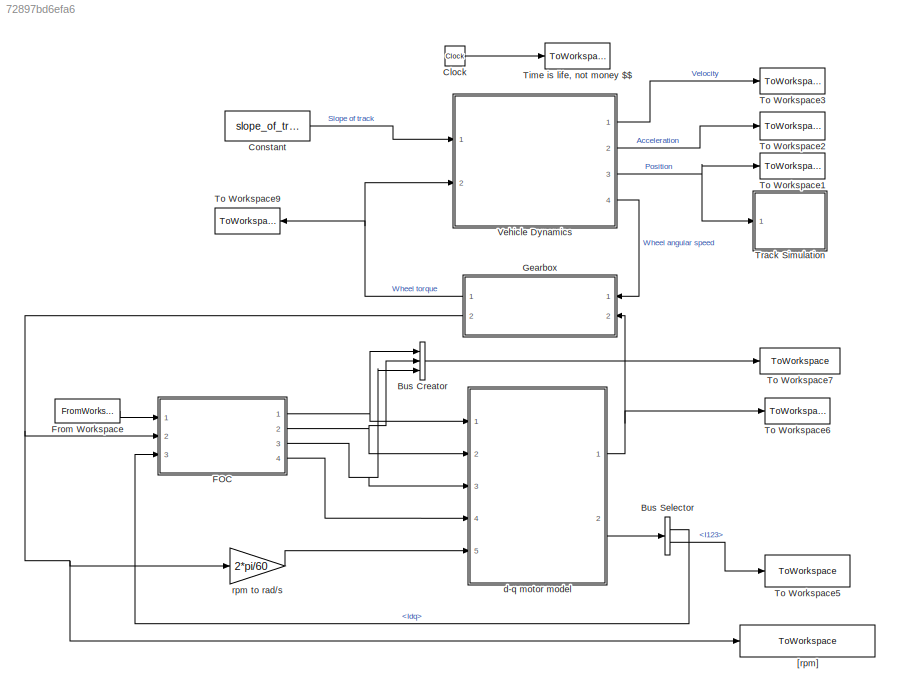
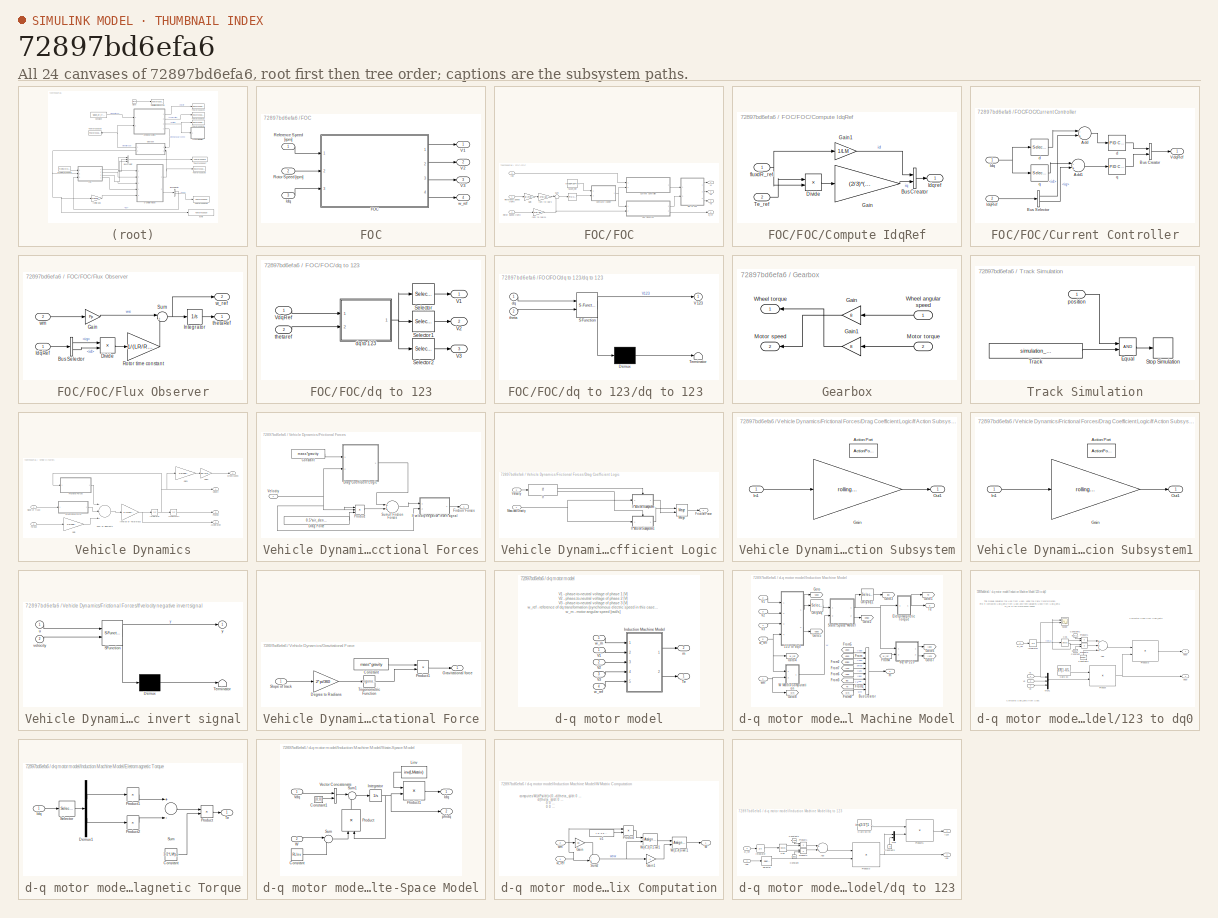
[diagram: thumbnail index - all 24 canvases of the model, root first then tree order]
MODEL slx_72897bd6efa6
KIND model
CONFIG AbsTol = auto
CONFIG EnableMultiTasking = off
CONFIG FixedStep = auto
CONFIG MaxStep = 1e-4
CONFIG MinStep = auto
CONFIG RelTol = 1e-4
CONFIG SampleTimeConstraint = Unconstrained
CONFIG Solver = ode23t
CONFIG SolverName = ode23t
CONFIG StartTime = 0.0
CONFIG StopTime = 100
BLOCK [BusCreator] Bus Creator
  DisplayOption = bar
  InheritFromInputs = on
  Inputs = 3
  Ports = [3, 1]
BLOCK [BusSelector] Bus Selector
  OutputAsBus = off
  OutputSignals = Idq,I123
  Ports = [1, 2]
BLOCK [Clock] Clock
BLOCK [Constant] Constant
  Value = slope_of_track
BLOCK [SubSystem] FOC
  Ports = [3, 4]
  RequestExecContextInheritance = off
BLOCK [SubSystem] FOC/FOC
  Ports = [3, 4]
  RequestExecContextInheritance = off
BLOCK [Reference] FOC/FOC/   REF=simulink/Continuous/PID Controller
  Ports = [1, 1]
  SourceBlock = simulink/Continuous/PID Controller
  SourceProductBaseCode = SL
  SourceProductName = Simulink
  SourceType = PID 1dof
BLOCK [SubSystem] FOC/FOC/Compute IdqRef
  Ports = [2, 1]
  RequestExecContextInheritance = off
  TreatAsAtomicUnit = on
BLOCK [BusCreator] FOC/FOC/Compute IdqRef/Bus Creator
  DisplayOption = bar
  InheritFromInputs = on
  Inputs = 2
  Ports = [2, 1]
BLOCK [Product] FOC/FOC/Compute IdqRef/Divide
  InputSameDT = off
  Inputs = */
  OutDataTypeStr = Inherit: Inherit via internal rule
  Ports = [2, 1]
  RndMeth = Floor
  SaturateOnIntegerOverflow = off
BLOCK [Gain] FOC/FOC/Compute IdqRef/Gain
  Gain = (2/3)*(1/Pp)*(LR/LM)
  OutDataTypeStr = Inherit: Inherit via internal rule
  ParamDataTypeStr = Inherit: Inherit via internal rule
  SaturateOnIntegerOverflow = off
BLOCK [Gain] FOC/FOC/Compute IdqRef/Gain1
  Gain = 1/LM
  OutDataTypeStr = Inherit: Inherit via internal rule
  ParamDataTypeStr = Inherit: Inherit via internal rule
  SaturateOnIntegerOverflow = off
BLOCK [Outport] FOC/FOC/Compute IdqRef/Idqref
  IconDisplay = Port number
BLOCK [Inport] FOC/FOC/Compute IdqRef/Te_ref
  IconDisplay = Port number
  Port = 2
BLOCK [Inport] FOC/FOC/Compute IdqRef/fluxdR_ref
  IconDisplay = Port number
BLOCK [SubSystem] FOC/FOC/Current Controller
  Ports = [2, 1]
  RequestExecContextInheritance = off
BLOCK [Sum] FOC/FOC/Current Controller/Add
  InputSameDT = off
  Inputs = -+
  OutDataTypeStr = Inherit: Inherit via internal rule
  Ports = [2, 1]
  SaturateOnIntegerOverflow = off
BLOCK [Sum] FOC/FOC/Current Controller/Add1
  InputSameDT = off
  Inputs = -+
  OutDataTypeStr = Inherit: Inherit via internal rule
  Ports = [2, 1]
  SaturateOnIntegerOverflow = off
BLOCK [BusCreator] FOC/FOC/Current Controller/Bus Creator
  DisplayOption = bar
  InheritFromInputs = on
  Inputs = 2
  Ports = [2, 1]
BLOCK [BusSelector] FOC/FOC/Current Controller/Bus Selector
  OutputAsBus = off
  OutputSignals = id,iq
  Ports = [1, 2]
BLOCK [Inport] FOC/FOC/Current Controller/Idq 
  IconDisplay = Port number
BLOCK [Inport] FOC/FOC/Current Controller/IdqRef 
  IconDisplay = Port number
  Port = 2
BLOCK [Outport] FOC/FOC/Current Controller/VdqRef 
  IconDisplay = Port number
BLOCK [Selector] FOC/FOC/Current Controller/d
  IndexOptions = Index vector (dialog)
  Indices = [1]
  InputPortWidth = 2
  OutputSizes = 1
  Ports = [1, 1]
BLOCK [Reference] FOC/FOC/Current Controller/d   REF=simulink/Continuous/PID Controller
  Ports = [1, 1]
  SourceBlock = simulink/Continuous/PID Controller
  SourceProductBaseCode = SL
  SourceProductName = Simulink
  SourceType = PID 1dof
BLOCK [Reference] FOC/FOC/Current Controller/q  REF=simulink/Continuous/PID Controller
  Ports = [1, 1]
  SourceBlock = simulink/Continuous/PID Controller
  SourceProductBaseCode = SL
  SourceProductName = Simulink
  SourceType = PID 1dof
BLOCK [Selector] FOC/FOC/Current Controller/q 
  IndexOptions = Index vector (dialog)
  Indices = [2]
  InputPortWidth = 2
  OutputSizes = 1
  Ports = [1, 1]
BLOCK [SubSystem] FOC/FOC/Flux Observer
  Ports = [2, 2]
  RequestExecContextInheritance = off
BLOCK [BusSelector] FOC/FOC/Flux Observer/Bus Selector
  OutputAsBus = off
  OutputSignals = iq,id
  Ports = [1, 2]
BLOCK [Product] FOC/FOC/Flux Observer/Divide
  InputSameDT = off
  Inputs = */
  OutDataTypeStr = Inherit: Inherit via internal rule
  Ports = [2, 1]
  RndMeth = Floor
  SaturateOnIntegerOverflow = off
BLOCK [Gain] FOC/FOC/Flux Observer/Gain
  Gain = Pp
  OutDataTypeStr = Inherit: Inherit via internal rule
  ParamDataTypeStr = Inherit: Inherit via internal rule
  SaturateOnIntegerOverflow = off
BLOCK [Inport] FOC/FOC/Flux Observer/IdqRef 
  IconDisplay = Port number
BLOCK [Integrator] FOC/FOC/Flux Observer/Integrator
  Ports = [1, 1]
BLOCK [Gain] FOC/FOC/Flux Observer/Rotor time constant
  Gain = 1/(LR/Rr)
  OutDataTypeStr = Inherit: Inherit via internal rule
  ParamDataTypeStr = Inherit: Inherit via internal rule
  SaturateOnIntegerOverflow = off
BLOCK [Sum] FOC/FOC/Flux Observer/Sum
  IconShape = round
  InputSameDT = off
  Inputs = |++
  OutDataTypeStr = Inherit: Inherit via internal rule
  Ports = [2, 1]
  SaturateOnIntegerOverflow = off
BLOCK [Outport] FOC/FOC/Flux Observer/thetaRef
  IconDisplay = Port number
BLOCK [Outport] FOC/FOC/Flux Observer/w_ref
  IconDisplay = Port number
  Port = 2
BLOCK [Inport] FOC/FOC/Flux Observer/wm 
  IconDisplay = Port number
  Port = 2
BLOCK [Gain] FOC/FOC/Gain
  Gain = 8/(2*pi)
  OutDataTypeStr = Inherit: Inherit via internal rule
  ParamDataTypeStr = Inherit: Inherit via internal rule
  SaturateOnIntegerOverflow = off
BLOCK [Inport] FOC/FOC/Idq 
  IconDisplay = Port number
  Port = 3
BLOCK [Inport] FOC/FOC/Reference Speed [rpm]
  IconDisplay = Port number
BLOCK [Inport] FOC/FOC/Rotor Speed [rpm] 
  IconDisplay = Port number
  Port = 2
BLOCK [Sum] FOC/FOC/Sum
  IconShape = round
  InputSameDT = off
  Inputs = |+-
  OutDataTypeStr = Inherit: Inherit via internal rule
  Ports = [2, 1]
  SaturateOnIntegerOverflow = off
BLOCK [Outport] FOC/FOC/V1
  IconDisplay = Port number
BLOCK [Outport] FOC/FOC/V2
  IconDisplay = Port number
  Port = 2
BLOCK [Outport] FOC/FOC/V3
  IconDisplay = Port number
  Port = 3
BLOCK [SubSystem] FOC/FOC/dq to 123
  Ports = [2, 3]
  RequestExecContextInheritance = off
BLOCK [Selector] FOC/FOC/dq to 123/Selector
  IndexOptions = Index vector (dialog)
  Indices = [1]
  InputPortWidth = 3
  OutputSizes = 1
  Ports = [1, 1]
BLOCK [Selector] FOC/FOC/dq to 123/Selector1
  IndexOptions = Index vector (dialog)
  Indices = [2]
  InputPortWidth = 3
  OutputSizes = 1
  Ports = [1, 1]
BLOCK [Selector] FOC/FOC/dq to 123/Selector2
  IndexOptions = Index vector (dialog)
  Indices = [3]
  InputPortWidth = 3
  OutputSizes = 1
  Ports = [1, 1]
BLOCK [Outport] FOC/FOC/dq to 123/V1
  IconDisplay = Port number
BLOCK [Outport] FOC/FOC/dq to 123/V2
  IconDisplay = Port number
  Port = 2
BLOCK [Outport] FOC/FOC/dq to 123/V3
  IconDisplay = Port number
  Port = 3
BLOCK [Inport] FOC/FOC/dq to 123/VdqRef 
  IconDisplay = Port number
BLOCK [SubSystem] FOC/FOC/dq to 123/dq to 123 
  ErrorFcn = Stateflow.Translate.translate
  PermitHierarchicalResolution = ExplicitOnly
  Ports = [2, 1]
  RequestExecContextInheritance = off
  SFBlockType = MATLAB Function
  TreatAsAtomicUnit = on
BLOCK [Demux] FOC/FOC/dq to 123/dq to 123 / Demux 
  Outputs = 1
  Ports = [1, 1]
BLOCK [S-Function] FOC/FOC/dq to 123/dq to 123 / SFunction 
  EnableBusSupport = on
  FunctionName = sf_sfun
  PortCounts = [2 2]
  Ports = [2, 2]
  SFcnIsStateOwnerBlock = off
  SFunctionDeploymentMode = off
  Tag = Stateflow S-Function 2
BLOCK [Terminator] FOC/FOC/dq to 123/dq to 123 / Terminator 
BLOCK [Outport] FOC/FOC/dq to 123/dq to 123 /V123
  IconDisplay = Port number
BLOCK [Inport] FOC/FOC/dq to 123/dq to 123 /dq
  IconDisplay = Port number
BLOCK [Inport] FOC/FOC/dq to 123/dq to 123 /theta
  IconDisplay = Port number
  Port = 2
BLOCK [Inport] FOC/FOC/dq to 123/thetaref
  IconDisplay = Port number
  Port = 2
BLOCK [Constant] FOC/FOC/fluxdR_Ref 
  Value = ratedFluxPeak
BLOCK [Gain] FOC/FOC/rpm to rad//s
  Gain = 2*pi/60
  OutDataTypeStr = Inherit: Inherit via internal rule
  ParamDataTypeStr = Inherit: Inherit via internal rule
  SaturateOnIntegerOverflow = off
BLOCK [Gain] FOC/FOC/rpm to rad//s1
  Gain = 2*pi/60
  OutDataTypeStr = Inherit: Inherit via internal rule
  ParamDataTypeStr = Inherit: Inherit via internal rule
  SaturateOnIntegerOverflow = off
BLOCK [Outport] FOC/FOC/w_ref
  IconDisplay = Port number
  Port = 4
BLOCK [Inport] FOC/Idq 
  IconDisplay = Port number
  Port = 3
BLOCK [Inport] FOC/Reference Speed [rpm]
  IconDisplay = Port number
BLOCK [Inport] FOC/Rotor Speed [rpm]
  IconDisplay = Port number
  Port = 2
BLOCK [Outport] FOC/V1
  IconDisplay = Port number
BLOCK [Outport] FOC/V2
  IconDisplay = Port number
  Port = 2
BLOCK [Outport] FOC/V3
  IconDisplay = Port number
  Port = 3
BLOCK [Outport] FOC/w_ref
  IconDisplay = Port number
  Port = 4
BLOCK [FromWorkspace] From Workspace
  SampleTime = 0
  VariableName = reference_speed
  ZeroCross = on
BLOCK [SubSystem] Gearbox
  Ports = [2, 2]
  RequestExecContextInheritance = off
BLOCK [Gain] Gearbox/Gain
  Gain = 8
  OutDataTypeStr = Inherit: Inherit via internal rule
  ParamDataTypeStr = Inherit: Inherit via internal rule
  SaturateOnIntegerOverflow = off
BLOCK [Gain] Gearbox/Gain1
  Gain = 8
  OutDataTypeStr = Inherit: Inherit via internal rule
  ParamDataTypeStr = Inherit: Inherit via internal rule
  SaturateOnIntegerOverflow = off
BLOCK [Outport] Gearbox/Motor speed
  IconDisplay = Port number
  Port = 2
BLOCK [Inport] Gearbox/Motor torque
  IconDisplay = Port number
  Port = 2
BLOCK [Inport] Gearbox/Wheel angular speed
  IconDisplay = Port number
BLOCK [Outport] Gearbox/Wheel torque 
  IconDisplay = Port number
BLOCK [ToWorkspace] Time is life, not money $$
  FixptAsFi = on
  MaxDataPoints = inf
  Ports = [1]
  SampleTime = -1
  VariableName = time
BLOCK [ToWorkspace] To Workspace1
  FixptAsFi = on
  MaxDataPoints = inf
  Ports = [1]
  SampleTime = -1
  VariableName = position
BLOCK [ToWorkspace] To Workspace2
  FixptAsFi = on
  MaxDataPoints = inf
  Ports = [1]
  SampleTime = -1
  VariableName = acceleration
BLOCK [ToWorkspace] To Workspace3
  FixptAsFi = on
  MaxDataPoints = inf
  Ports = [1]
  SampleTime = -1
  VariableName = velocity
BLOCK [ToWorkspace] To Workspace5
  FixptAsFi = on
  MaxDataPoints = inf
  Ports = [1]
  SampleTime = -1
  SaveFormat = Timeseries
  VariableName = stator_current
BLOCK [ToWorkspace] To Workspace6
  FixptAsFi = on
  MaxDataPoints = inf
  Ports = [1]
  SampleTime = -1
  SaveFormat = Timeseries
  VariableName = motor_torque
BLOCK [ToWorkspace] To Workspace7
  FixptAsFi = on
  MaxDataPoints = inf
  Ports = [1]
  SampleTime = -1
  SaveFormat = Timeseries
  VariableName = stator_voltage
BLOCK [ToWorkspace] To Workspace9
  FixptAsFi = on
  MaxDataPoints = inf
  Ports = [1]
  SampleTime = -1
  VariableName = wheel_torque
BLOCK [SubSystem] Track Simulation
  Ports = [1]
  RequestExecContextInheritance = off
BLOCK [RelationalOperator] Track Simulation/Equal
  InputSameDT = off
  OutDataTypeStr = boolean
  Ports = [2, 1]
  RndMeth = Simplest
BLOCK [Stop] Track Simulation/Stop Simulation
BLOCK [Constant] Track Simulation/Track 
  Value = simulation_length_track
BLOCK [Inport] Track Simulation/position
  IconDisplay = Port number
BLOCK [SubSystem] Vehicle Dynamics
  Ports = [2, 4]
  RequestExecContextInheritance = off
BLOCK [Outport] Vehicle Dynamics/Acceleration
  IconDisplay = Port number
  Port = 2
BLOCK [SubSystem] Vehicle Dynamics/Frictional Forces
  Ports = [1, 1]
  RequestExecContextInheritance = off
BLOCK [Constant] Vehicle Dynamics/Frictional Forces/Constant
  Value = mass*gravity
BLOCK [SubSystem] Vehicle Dynamics/Frictional Forces/Drag Coefficient Logic
  Ports = [2, 1]
  RequestExecContextInheritance = off
BLOCK [Outport] Vehicle Dynamics/Frictional Forces/Drag Coefficient Logic/Friction Force
  IconDisplay = Port number
BLOCK [If] Vehicle Dynamics/Frictional Forces/Drag Coefficient Logic/If
  IfExpression = u1 > 0.01
  Ports = [1, 2]
BLOCK [SubSystem] Vehicle Dynamics/Frictional Forces/Drag Coefficient Logic/If Action Subsystem
  Ports = [1, 1, 0, 0, 0, 0, 0, 1]
  RequestExecContextInheritance = off
  TreatAsAtomicUnit = on
BLOCK [ActionPort] Vehicle Dynamics/Frictional Forces/Drag Coefficient Logic/If Action Subsystem/Action Port
  ActionPortLabel = if(u1 > 0.01)
BLOCK [Gain] Vehicle Dynamics/Frictional Forces/Drag Coefficient Logic/If Action Subsystem/Gain
  Gain = rolling_resistance_coefficient_1
  OutDataTypeStr = Inherit: Inherit via internal rule
  ParamDataTypeStr = Inherit: Inherit via internal rule
  SaturateOnIntegerOverflow = off
BLOCK [Inport] Vehicle Dynamics/Frictional Forces/Drag Coefficient Logic/If Action Subsystem/In1
  IconDisplay = Port number
BLOCK [Outport] Vehicle Dynamics/Frictional Forces/Drag Coefficient Logic/If Action Subsystem/Out1
  IconDisplay = Port number
BLOCK [SubSystem] Vehicle Dynamics/Frictional Forces/Drag Coefficient Logic/If Action Subsystem1
  Ports = [1, 1, 0, 0, 0, 0, 0, 1]
  RequestExecContextInheritance = off
  TreatAsAtomicUnit = on
BLOCK [ActionPort] Vehicle Dynamics/Frictional Forces/Drag Coefficient Logic/If Action Subsystem1/Action Port
  ActionPortLabel = else
BLOCK [Gain] Vehicle Dynamics/Frictional Forces/Drag Coefficient Logic/If Action Subsystem1/Gain
  Gain = rolling_resistance_coefficient_0
  OutDataTypeStr = Inherit: Inherit via internal rule
  ParamDataTypeStr = Inherit: Inherit via internal rule
  SaturateOnIntegerOverflow = off
BLOCK [Inport] Vehicle Dynamics/Frictional Forces/Drag Coefficient Logic/If Action Subsystem1/In1
  IconDisplay = Port number
BLOCK [Outport] Vehicle Dynamics/Frictional Forces/Drag Coefficient Logic/If Action Subsystem1/Out1
  IconDisplay = Port number
BLOCK [Inport] Vehicle Dynamics/Frictional Forces/Drag Coefficient Logic/Mass and Gravity 
  IconDisplay = Port number
BLOCK [Merge] Vehicle Dynamics/Frictional Forces/Drag Coefficient Logic/Merge
  Ports = [2, 1]
BLOCK [Inport] Vehicle Dynamics/Frictional Forces/Drag Coefficient Logic/Velocity
  IconDisplay = Port number
  Port = 2
BLOCK [Constant] Vehicle Dynamics/Frictional Forces/Drag Force
  Value = 0.5*air_density*surface_area*drag_coefficient
BLOCK [Outport] Vehicle Dynamics/Frictional Forces/Firction Forces
  IconDisplay = Port number
BLOCK [SubSystem] Vehicle Dynamics/Frictional Forces/If velocity negative invert signal
  ErrorFcn = Stateflow.Translate.translate
  PermitHierarchicalResolution = ExplicitOnly
  Ports = [2, 1]
  RequestExecContextInheritance = off
  SFBlockType = MATLAB Function
  TreatAsAtomicUnit = on
BLOCK [Demux] Vehicle Dynamics/Frictional Forces/If velocity negative invert signal/ Demux 
  Outputs = 1
  Ports = [1, 1]
BLOCK [S-Function] Vehicle Dynamics/Frictional Forces/If velocity negative invert signal/ SFunction 
  EnableBusSupport = on
  FunctionName = sf_sfun
  PortCounts = [2 2]
  Ports = [2, 2]
  SFcnIsStateOwnerBlock = off
  SFunctionDeploymentMode = off
  Tag = Stateflow S-Function 3
BLOCK [Terminator] Vehicle Dynamics/Frictional Forces/If velocity negative invert signal/ Terminator 
BLOCK [Inport] Vehicle Dynamics/Frictional Forces/If velocity negative invert signal/u
  IconDisplay = Port number
BLOCK [Inport] Vehicle Dynamics/Frictional Forces/If velocity negative invert signal/velocity
  IconDisplay = Port number
  Port = 2
BLOCK [Outport] Vehicle Dynamics/Frictional Forces/If velocity negative invert signal/y
  IconDisplay = Port number
BLOCK [Product] Vehicle Dynamics/Frictional Forces/Product
  InputSameDT = off
  Inputs = 3
  OutDataTypeStr = Inherit: Inherit via internal rule
  Ports = [3, 1]
  RndMeth = Floor
  SaturateOnIntegerOverflow = off
BLOCK [Sum] Vehicle Dynamics/Frictional Forces/Sum of Friction Forces
  InputSameDT = off
  OutDataTypeStr = Inherit: Inherit via internal rule
  Ports = [2, 1]
  SaturateOnIntegerOverflow = off
BLOCK [Inport] Vehicle Dynamics/Frictional Forces/Velocity
  IconDisplay = Port number
BLOCK [Gain] Vehicle Dynamics/Gain
  Gain = 1/wheel_radius
  OutDataTypeStr = Inherit: Inherit via internal rule
  ParamDataTypeStr = Inherit: Inherit via internal rule
  SaturateOnIntegerOverflow = off
BLOCK [Gain] Vehicle Dynamics/Gain1
  Gain = 1/wheel_radius
  OutDataTypeStr = Inherit: Inherit via internal rule
  ParamDataTypeStr = Inherit: Inherit via internal rule
  SaturateOnIntegerOverflow = off
BLOCK [Gain] Vehicle Dynamics/Gain2
  Gain = 60/(2*pi)
  OutDataTypeStr = Inherit: Inherit via internal rule
  ParamDataTypeStr = Inherit: Inherit via internal rule
  SaturateOnIntegerOverflow = off
BLOCK [SubSystem] Vehicle Dynamics/Gravitational Force
  Ports = [1, 1]
  RequestExecContextInheritance = off
BLOCK [Constant] Vehicle Dynamics/Gravitational Force/Constant
  Value = mass*gravity
BLOCK [Gain] Vehicle Dynamics/Gravitational Force/Degree to Radians
  Gain = 2*pi/360
  OutDataTypeStr = Inherit: Inherit via internal rule
  ParamDataTypeStr = Inherit: Inherit via internal rule
  SaturateOnIntegerOverflow = off
BLOCK [Outport] Vehicle Dynamics/Gravitational Force/Gravitational force
  IconDisplay = Port number
BLOCK [Product] Vehicle Dynamics/Gravitational Force/Product1
  InputSameDT = off
  OutDataTypeStr = Inherit: Inherit via internal rule
  Ports = [2, 1]
  RndMeth = Floor
  SaturateOnIntegerOverflow = off
BLOCK [Inport] Vehicle Dynamics/Gravitational Force/Slope of track
  IconDisplay = Port number
BLOCK [Trigonometry] Vehicle Dynamics/Gravitational Force/Trigonometric Function
  Ports = [1, 1]
BLOCK [Integrator] Vehicle Dynamics/Integrator
  Ports = [1, 1]
BLOCK [Integrator] Vehicle Dynamics/Integrator1
  Ports = [1, 1]
BLOCK [Gain] Vehicle Dynamics/Inverse of Total Mass
  Gain = 1/(mass+equ_mass_of_rot_parts)
  OutDataTypeStr = Inherit: Inherit via internal rule
  ParamDataTypeStr = Inherit: Inherit via internal rule
  SaturateOnIntegerOverflow = off
BLOCK [Outport] Vehicle Dynamics/Position
  IconDisplay = Port number
  Port = 3
BLOCK [Inport] Vehicle Dynamics/Slope of track 
  IconDisplay = Port number
BLOCK [Sum] Vehicle Dynamics/Sum of Elements
  InputSameDT = off
  Inputs = --+
  OutDataTypeStr = Inherit: Inherit via internal rule
  Ports = [3, 1]
  SaturateOnIntegerOverflow = off
BLOCK [Inport] Vehicle Dynamics/Torque
  IconDisplay = Port number
  Port = 2
BLOCK [Outport] Vehicle Dynamics/Velocity
  IconDisplay = Port number
BLOCK [Outport] Vehicle Dynamics/Wheel speed
  IconDisplay = Port number
  Port = 4
BLOCK [ToWorkspace] [rpm]
  FixptAsFi = on
  MaxDataPoints = inf
  Ports = [1]
  SampleTime = -1
  SaveFormat = Timeseries
  VariableName = rotor_angular_velocity
BLOCK [SubSystem] d-q motor model
  Ports = [5, 2]
  RequestExecContextInheritance = off
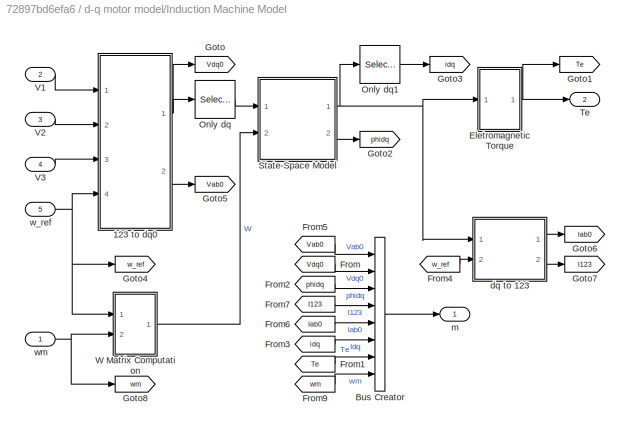
BLOCK [SubSystem] d-q motor model/Induction Machine Model
  Ports = [5, 2]
  RequestExecContextInheritance = off
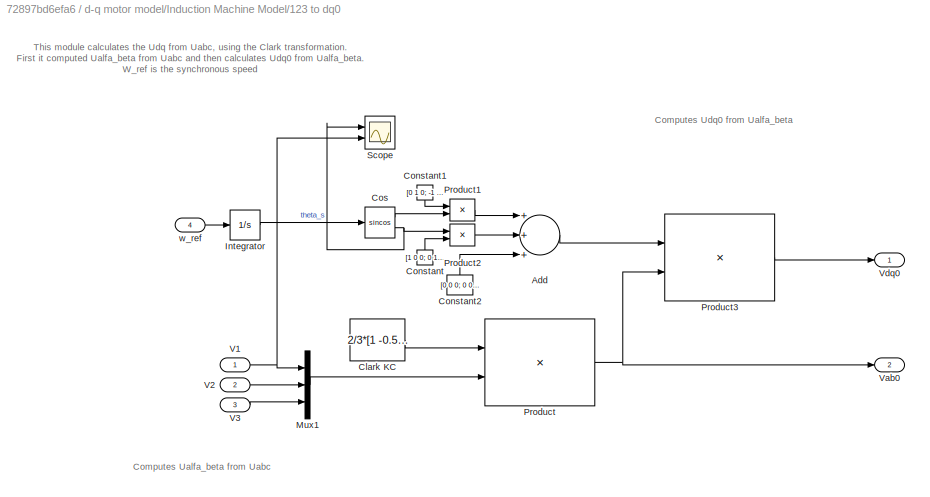
BLOCK [SubSystem] d-q motor model/Induction Machine Model/123 to dq0
  Ports = [4, 2]
  RequestExecContextInheritance = off
BLOCK [Sum] d-q motor model/Induction Machine Model/123 to dq0/Add
  InputSameDT = off
  Inputs = +++
  OutDataTypeStr = Inherit: Inherit via internal rule
  Ports = [3, 1]
  SaturateOnIntegerOverflow = off
BLOCK [Constant] d-q motor model/Induction Machine Model/123 to dq0/Clark KC
  Value = 2/3*[1 -0.5 -0.5; 0 sqrt(3)/2 -sqrt(3)/2; 1/2 1/2 1/2]
BLOCK [Constant] d-q motor model/Induction Machine Model/123 to dq0/Constant
  Value = [1 0 0; 0 1 0; 0 0 0]
BLOCK [Constant] d-q motor model/Induction Machine Model/123 to dq0/Constant1
  Value = [0 1 0; -1 0 0; 0 0 0]
BLOCK [Constant] d-q motor model/Induction Machine Model/123 to dq0/Constant2
  Value = [0 0 0; 0 0 0; 0 0 1]
BLOCK [Trigonometry] d-q motor model/Induction Machine Model/123 to dq0/Cos
  Operator = sincos
  Ports = [1, 2]
BLOCK [Integrator] d-q motor model/Induction Machine Model/123 to dq0/Integrator
  Ports = [1, 1]
BLOCK [Mux] d-q motor model/Induction Machine Model/123 to dq0/Mux1
  DisplayOption = bar
  Inputs = 3
  Ports = [3, 1]
BLOCK [Product] d-q motor model/Induction Machine Model/123 to dq0/Product
  InputSameDT = off
  Multiplication = Matrix(*)
  OutDataTypeStr = Inherit: Inherit via internal rule
  Ports = [2, 1]
  RndMeth = Floor
  SaturateOnIntegerOverflow = off
BLOCK [Product] d-q motor model/Induction Machine Model/123 to dq0/Product1
  InputSameDT = off
  OutDataTypeStr = Inherit: Inherit via internal rule
  Ports = [2, 1]
  RndMeth = Floor
  SaturateOnIntegerOverflow = off
BLOCK [Product] d-q motor model/Induction Machine Model/123 to dq0/Product2
  InputSameDT = off
  OutDataTypeStr = Inherit: Inherit via internal rule
  Ports = [2, 1]
  RndMeth = Floor
  SaturateOnIntegerOverflow = off
BLOCK [Product] d-q motor model/Induction Machine Model/123 to dq0/Product3
  InputSameDT = off
  Multiplication = Matrix(*)
  OutDataTypeStr = Inherit: Inherit via internal rule
  Ports = [2, 1]
  RndMeth = Floor
  SaturateOnIntegerOverflow = off
BLOCK [Scope] d-q motor model/Induction Machine Model/123 to dq0/Scope
  Floating = off
  NumInputPorts = 2
  Ports = [2]
  ScopeSpecificationString = Simulink.scopes.TimeScopeBlockCfg('CurrentConfiguration', extmgr.ConfigurationSet(extmgr.Configuration('Core','General UI',true),extmgr.Configuration('Core','Source UI',true),extmgr.Configuration('Sources','WiredSimulink',true,'DataLoggingVariableName','ScopeData4'),extmgr.Configuration('Visuals','Time Domain',true,'SerializedDisplays',{struct('MinYLimReal','-76.99014','MaxYLimReal','76.91085','YL...<+1475ch>
BLOCK [Inport] d-q motor model/Induction Machine Model/123 to dq0/V1
  IconDisplay = Port number
BLOCK [Inport] d-q motor model/Induction Machine Model/123 to dq0/V2
  IconDisplay = Port number
  Port = 2
BLOCK [Inport] d-q motor model/Induction Machine Model/123 to dq0/V3
  IconDisplay = Port number
  Port = 3
BLOCK [Outport] d-q motor model/Induction Machine Model/123 to dq0/Vab0
  IconDisplay = Port number
  Port = 2
  VectorParamsAs1DForOutWhenUnconnected = off
BLOCK [Outport] d-q motor model/Induction Machine Model/123 to dq0/Vdq0
  IconDisplay = Port number
  VectorParamsAs1DForOutWhenUnconnected = off
BLOCK [Inport] d-q motor model/Induction Machine Model/123 to dq0/w_ref
  IconDisplay = Port number
  Port = 4
BLOCK [BusCreator] d-q motor model/Induction Machine Model/Bus Creator
  DisplayOption = bar
  InheritFromInputs = on
  Inputs = 8
  Ports = [8, 1]
BLOCK [SubSystem] d-q motor model/Induction Machine Model/Eletromagnetic Torque
  Ports = [1, 1]
  RequestExecContextInheritance = off
BLOCK [Constant] d-q motor model/Induction Machine Model/Eletromagnetic Torque/Constant
  Value = 3/2*LM*pp
BLOCK [Demux] d-q motor model/Induction Machine Model/Eletromagnetic Torque/Demux1
  DisplayOption = bar
  Outputs = 2
  Ports = [1, 2]
BLOCK [Inport] d-q motor model/Induction Machine Model/Eletromagnetic Torque/Idq
  IconDisplay = Port number
BLOCK [Product] d-q motor model/Induction Machine Model/Eletromagnetic Torque/Product
  InputSameDT = off
  OutDataTypeStr = Inherit: Inherit via internal rule
  Ports = [2, 1]
  RndMeth = Floor
  SaturateOnIntegerOverflow = off
BLOCK [Product] d-q motor model/Induction Machine Model/Eletromagnetic Torque/Product1
  InputSameDT = off
  Inputs = 1
  OutDataTypeStr = Inherit: Inherit via internal rule
  Ports = [1, 1]
  RndMeth = Floor
  SaturateOnIntegerOverflow = off
BLOCK [Product] d-q motor model/Induction Machine Model/Eletromagnetic Torque/Product2
  InputSameDT = off
  Inputs = 1
  OutDataTypeStr = Inherit: Inherit via internal rule
  Ports = [1, 1]
  RndMeth = Floor
  SaturateOnIntegerOverflow = off
BLOCK [Selector] d-q motor model/Induction Machine Model/Eletromagnetic Torque/Selector
  IndexOptions = Index vector (dialog)
  Indices = [2 3 1 4]
  InputPortWidth = 4
  OutputSizes = 1
  Ports = [1, 1]
BLOCK [Sum] d-q motor model/Induction Machine Model/Eletromagnetic Torque/Sum
  InputSameDT = off
  Inputs = +-
  OutDataTypeStr = Inherit: Inherit via internal rule
  Ports = [2, 1]
  SaturateOnIntegerOverflow = off
BLOCK [Outport] d-q motor model/Induction Machine Model/Eletromagnetic Torque/Te
  IconDisplay = Port number
  VectorParamsAs1DForOutWhenUnconnected = off
BLOCK [From] d-q motor model/Induction Machine Model/From
  GotoTag = Vdq0
BLOCK [From] d-q motor model/Induction Machine Model/From1
  GotoTag = Te
BLOCK [From] d-q motor model/Induction Machine Model/From2
  GotoTag = phidq
BLOCK [From] d-q motor model/Induction Machine Model/From3
  GotoTag = idq
BLOCK [From] d-q motor model/Induction Machine Model/From4
  GotoTag = w_ref
BLOCK [From] d-q motor model/Induction Machine Model/From5
  GotoTag = Vab0
BLOCK [From] d-q motor model/Induction Machine Model/From6
  GotoTag = Iab0
BLOCK [From] d-q motor model/Induction Machine Model/From7
  GotoTag = I123
BLOCK [From] d-q motor model/Induction Machine Model/From9
  GotoTag = wm
BLOCK [Goto] d-q motor model/Induction Machine Model/Goto
  GotoTag = Vdq0
BLOCK [Goto] d-q motor model/Induction Machine Model/Goto1
  GotoTag = Te
BLOCK [Goto] d-q motor model/Induction Machine Model/Goto2
  GotoTag = phidq
BLOCK [Goto] d-q motor model/Induction Machine Model/Goto3
  GotoTag = idq
BLOCK [Goto] d-q motor model/Induction Machine Model/Goto4
  GotoTag = w_ref
BLOCK [Goto] d-q motor model/Induction Machine Model/Goto5
  GotoTag = Vab0
BLOCK [Goto] d-q motor model/Induction Machine Model/Goto6
  GotoTag = Iab0
BLOCK [Goto] d-q motor model/Induction Machine Model/Goto7
  GotoTag = I123
BLOCK [Goto] d-q motor model/Induction Machine Model/Goto8
  GotoTag = wm
BLOCK [Selector] d-q motor model/Induction Machine Model/Only dq
  IndexOptions = Index vector (dialog)
  Indices = [1 2]
  InputPortWidth = 3
  OutputSizes = 1
  Ports = [1, 1]
BLOCK [Selector] d-q motor model/Induction Machine Model/Only dq1
  IndexOptions = Index vector (dialog)
  Indices = [1 2]
  InputPortWidth = 4
  OutputSizes = 1
  Ports = [1, 1]
BLOCK [SubSystem] d-q motor model/Induction Machine Model/State-Space Model
  Ports = [2, 2]
  RequestExecContextInheritance = off
BLOCK [Constant] d-q motor model/Induction Machine Model/State-Space Model/Constant
  Value = RLInv
  VectorParams1D = off
BLOCK [Constant] d-q motor model/Induction Machine Model/State-Space Model/Constant1
  Value = [0;0]
BLOCK [Outport] d-q motor model/Induction Machine Model/State-Space Model/Idq
  IconDisplay = Port number
  VectorParamsAs1DForOutWhenUnconnected = off
BLOCK [Integrator] d-q motor model/Induction Machine Model/State-Space Model/Integrator
  Ports = [1, 1]
BLOCK [Constant] d-q motor model/Induction Machine Model/State-Space Model/Linv
  Value = inv(LMatrix)
  VectorParams1D = off
BLOCK [Product] d-q motor model/Induction Machine Model/State-Space Model/Product
  InputSameDT = off
  Multiplication = Matrix(*)
  OutDataTypeStr = Inherit: Inherit via internal rule
  Ports = [2, 1]
  RndMeth = Floor
  SaturateOnIntegerOverflow = off
BLOCK [Product] d-q motor model/Induction Machine Model/State-Space Model/Product1
  InputSameDT = off
  Multiplication = Matrix(*)
  OutDataTypeStr = Inherit: Inherit via internal rule
  Ports = [2, 1]
  RndMeth = Floor
  SaturateOnIntegerOverflow = off
BLOCK [Sum] d-q motor model/Induction Machine Model/State-Space Model/Sum
  IconShape = round
  InputSameDT = off
  Inputs = |--
  OutDataTypeStr = Inherit: Inherit via internal rule
  Ports = [2, 1]
  SaturateOnIntegerOverflow = off
BLOCK [Sum] d-q motor model/Induction Machine Model/State-Space Model/Sum1
  IconShape = round
  InputSameDT = off
  Inputs = |++
  OutDataTypeStr = Inherit: Inherit via internal rule
  Ports = [2, 1]
  SaturateOnIntegerOverflow = off
BLOCK [Inport] d-q motor model/Induction Machine Model/State-Space Model/Vdq
  IconDisplay = Port number
BLOCK [Concatenate] d-q motor model/Induction Machine Model/State-Space Model/Vector Concatenate
  Ports = [2, 1]
BLOCK [Inport] d-q motor model/Induction Machine Model/State-Space Model/W
  IconDisplay = Port number
  Port = 2
BLOCK [Outport] d-q motor model/Induction Machine Model/State-Space Model/phidq
  IconDisplay = Port number
  Port = 2
  VectorParamsAs1DForOutWhenUnconnected = off
BLOCK [Outport] d-q motor model/Induction Machine Model/Te
  IconDisplay = Port number
  Port = 2
  VectorParamsAs1DForOutWhenUnconnected = off
BLOCK [Inport] d-q motor model/Induction Machine Model/V1
  IconDisplay = Port number
  Port = 2
BLOCK [Inport] d-q motor model/Induction Machine Model/V2
  IconDisplay = Port number
  Port = 3
BLOCK [Inport] d-q motor model/Induction Machine Model/V3
  IconDisplay = Port number
  Port = 4
BLOCK [SubSystem] d-q motor model/Induction Machine Model/W Matrix Computation
  Ports = [2, 1]
  RequestExecContextInheritance = off
BLOCK [Gain] d-q motor model/Induction Machine Model/W Matrix Computation/Gain
  Gain = pp
  OutDataTypeStr = Inherit: Inherit via internal rule
  ParamDataTypeStr = Inherit: Inherit via internal rule
  SaturateOnIntegerOverflow = off
BLOCK [Gain] d-q motor model/Induction Machine Model/W Matrix Computation/Gain1
  Gain = -1
BLOCK [Product] d-q motor model/Induction Machine Model/W Matrix Computation/Product
  InputSameDT = off
  OutDataTypeStr = Inherit: Inherit via internal rule
  Ports = [2, 1]
  RndMeth = Floor
  SaturateOnIntegerOverflow = off
BLOCK [Sum] d-q motor model/Induction Machine Model/W Matrix Computation/Sum2
  IconShape = round
  Inputs = -+|
  Ports = [2, 1]
BLOCK [Outport] d-q motor model/Induction Machine Model/W Matrix Computation/W
  IconDisplay = Port number
  InitialOutput = 0
  VectorParamsAs1DForOutWhenUnconnected = off
BLOCK [Assignment] d-q motor model/Induction Machine Model/W Matrix Computation/W(3,4)=wr-1
  IndexOptions = Index vector (dialog),Index vector (dialog)
  Indices = 3,4
  NumberOfDimensions = 2
  OutputSizes = 1,1
  Ports = [2, 1]
BLOCK [Assignment] d-q motor model/Induction Machine Model/W Matrix Computation/W(4,3)=1-wr1
  IndexOptions = Index vector (dialog),Index vector (dialog)
  Indices = 4,3
  NumberOfDimensions = 2
  OutputSizes = 1,1
  Ports = [2, 1]
BLOCK [Constant] d-q motor model/Induction Machine Model/W Matrix Computation/u1
  Value = [ 0 -1  0  0; 1  0  0  0;  0  0  0  0;  0  0  0  0]
BLOCK [Inport] d-q motor model/Induction Machine Model/W Matrix Computation/w_ref
  IconDisplay = Port number
BLOCK [Inport] d-q motor model/Induction Machine Model/W Matrix Computation/wm
  IconDisplay = Port number
  Port = 2
BLOCK [SubSystem] d-q motor model/Induction Machine Model/dq to 123
  Ports = [2, 2]
  RequestExecContextInheritance = off
BLOCK [Sum] d-q motor model/Induction Machine Model/dq to 123/Add
  InputSameDT = off
  OutDataTypeStr = Inherit: Inherit via internal rule
  Ports = [2, 1]
  SaturateOnIntegerOverflow = off
BLOCK [Constant] d-q motor model/Induction Machine Model/dq to 123/Clark KCInv
  Value = inv(2/3*[1 -0.5 -0.5; 0 sqrt(3)/2 -sqrt(3)/2; 1/sqrt(2) 1/sqrt(2) 1/sqrt(2)])
BLOCK [Constant] d-q motor model/Induction Machine Model/dq to 123/Constant
  Value = [1 0; 0 1]
BLOCK [Constant] d-q motor model/Induction Machine Model/dq to 123/Constant1
  Value = [0 -1; 1 0]
BLOCK [Constant] d-q motor model/Induction Machine Model/dq to 123/Constant2
  Value = 0
BLOCK [Trigonometry] d-q motor model/Induction Machine Model/dq to 123/Cos
  Operator = sincos
  Ports = [1, 2]
BLOCK [Outport] d-q motor model/Induction Machine Model/dq to 123/I123
  IconDisplay = Port number
  Port = 2
  VectorParamsAs1DForOutWhenUnconnected = off
BLOCK [Outport] d-q motor model/Induction Machine Model/dq to 123/Iab
  IconDisplay = Port number
  VectorParamsAs1DForOutWhenUnconnected = off
BLOCK [Inport] d-q motor model/Induction Machine Model/dq to 123/Idq
  IconDisplay = Port number
BLOCK [Integrator] d-q motor model/Induction Machine Model/dq to 123/Integrator
  Ports = [1, 1]
BLOCK [Mux] d-q motor model/Induction Machine Model/dq to 123/Mux
  DisplayOption = bar
  Inputs = 2
  Ports = [2, 1]
BLOCK [Product] d-q motor model/Induction Machine Model/dq to 123/Product1
  InputSameDT = off
  OutDataTypeStr = Inherit: Inherit via internal rule
  Ports = [2, 1]
  RndMeth = Floor
  SaturateOnIntegerOverflow = off
BLOCK [Product] d-q motor model/Induction Machine Model/dq to 123/Product2
  InputSameDT = off
  OutDataTypeStr = Inherit: Inherit via internal rule
  Ports = [2, 1]
  RndMeth = Floor
  SaturateOnIntegerOverflow = off
BLOCK [Product] d-q motor model/Induction Machine Model/dq to 123/Product3
  InputSameDT = off
  Multiplication = Matrix(*)
  OutDataTypeStr = Inherit: Inherit via internal rule
  Ports = [2, 1]
  RndMeth = Floor
  SaturateOnIntegerOverflow = off
BLOCK [Product] d-q motor model/Induction Machine Model/dq to 123/Product5
  InputSameDT = off
  Multiplication = Matrix(*)
  OutDataTypeStr = Inherit: Inherit via internal rule
  Ports = [2, 1]
  RndMeth = Floor
  SaturateOnIntegerOverflow = off
BLOCK [Selector] d-q motor model/Induction Machine Model/dq to 123/Selector
  IndexOptions = Index vector (dialog)
  Indices = [1 2]
  InputPortWidth = 4
  OutputSizes = 1
  Ports = [1, 1]
BLOCK [Inport] d-q motor model/Induction Machine Model/dq to 123/w_ref
  IconDisplay = Port number
  Port = 2
BLOCK [Outport] d-q motor model/Induction Machine Model/m
  IconDisplay = Port number
  VectorParamsAs1DForOutWhenUnconnected = off
BLOCK [Inport] d-q motor model/Induction Machine Model/w_ref
  IconDisplay = Port number
  Port = 5
BLOCK [Inport] d-q motor model/Induction Machine Model/wm
  IconDisplay = Port number
BLOCK [Outport] d-q motor model/Te
  IconDisplay = Port number
  VectorParamsAs1DForOutWhenUnconnected = off
BLOCK [Inport] d-q motor model/V1
  IconDisplay = Port number
BLOCK [Inport] d-q motor model/V2
  IconDisplay = Port number
  Port = 2
BLOCK [Inport] d-q motor model/V3
  IconDisplay = Port number
  Port = 3
BLOCK [Outport] d-q motor model/m
  IconDisplay = Port number
  Port = 2
  VectorParamsAs1DForOutWhenUnconnected = off
BLOCK [Inport] d-q motor model/w_m
  IconDisplay = Port number
  Port = 5
BLOCK [Inport] d-q motor model/w_ref
  IconDisplay = Port number
  Port = 4
BLOCK [Gain] rpm to rad//s
  Gain = 2*pi/60
  OutDataTypeStr = Inherit: Inherit via internal rule
  ParamDataTypeStr = Inherit: Inherit via internal rule
  SaturateOnIntegerOverflow = off
ANNOTATION d-q motor model: V1 - phase-to-neutral voltage of phase 1 [V] V2 - phase-to-neutral voltage of phase 2 [V] V3 - phase-to-neutral voltage of phase 3 [V] w_ref - reference of dq transformation (synchornous electric speed in this case = 2*pi*f) [rad/s] w_m - motor angular speed [rad/s]
ANNOTATION d-q motor model/Induction Machine Model/123 to dq0: Computes Ualfa_beta from Uabc
ANNOTATION d-q motor model/Induction Machine Model/123 to dq0: Computes Udq0 from Ualfa_beta
ANNOTATION d-q motor model/Induction Machine Model/123 to dq0: This module calculates the Udq from Uabc, using the Clark transformation. First it computed Ualfa_beta from Uabc and then calculates Udq0 from Ualfa_beta . W_ref is the synchronous speed
ANNOTATION d-q motor model/Induction Machine Model/W Matrix Computation: computes W(dPsi/dt)=[0 -d(theta_s)/dt 0 0; d(theta_s)/dt 0 0 0; 0 0 0 -d(theta_r)/dt; 0 0 d(theta_r)/dt 0;]
LINE Bus Creator:1 -> To Workspace7:1
LINE Bus Selector:1 -> FOC:3
LINE Bus Selector:2 -> To Workspace5:1
LINE Clock:1 -> Time is life, not money $$:1
LINE Constant:1 -> Vehicle Dynamics:1
LINE FOC/FOC/ :1 -> FOC/FOC/Compute IdqRef:2
LINE FOC/FOC/Compute IdqRef/Bus Creator:1 -> FOC/FOC/Compute IdqRef/Idqref:1
LINE FOC/FOC/Compute IdqRef/Divide:1 -> FOC/FOC/Compute IdqRef/Gain:1
LINE FOC/FOC/Compute IdqRef/Gain1:1 -> FOC/FOC/Compute IdqRef/Bus Creator:1
LINE FOC/FOC/Compute IdqRef/Gain:1 -> FOC/FOC/Compute IdqRef/Bus Creator:2
LINE FOC/FOC/Compute IdqRef/Te_ref:1 -> FOC/FOC/Compute IdqRef/Divide:1
NET FOC/FOC/Compute IdqRef/fluxdR_ref:1 -> FOC/FOC/Compute IdqRef/Divide:2, FOC/FOC/Compute IdqRef/Gain1:1
NET FOC/FOC/Compute IdqRef:1 -> FOC/FOC/Current Controller:2, FOC/FOC/Flux Observer:1
LINE FOC/FOC/Current Controller/Add1:1 -> FOC/FOC/Current Controller/q:1
LINE FOC/FOC/Current Controller/Add:1 -> FOC/FOC/Current Controller/d :1
LINE FOC/FOC/Current Controller/Bus Creator:1 -> FOC/FOC/Current Controller/VdqRef :1
LINE FOC/FOC/Current Controller/Bus Selector:1 -> FOC/FOC/Current Controller/Add:2
LINE FOC/FOC/Current Controller/Bus Selector:2 -> FOC/FOC/Current Controller/Add1:2
NET FOC/FOC/Current Controller/Idq :1 -> FOC/FOC/Current Controller/d:1, FOC/FOC/Current Controller/q :1
LINE FOC/FOC/Current Controller/IdqRef :1 -> FOC/FOC/Current Controller/Bus Selector:1
LINE FOC/FOC/Current Controller/d :1 -> FOC/FOC/Current Controller/Bus Creator:1
LINE FOC/FOC/Current Controller/d:1 -> FOC/FOC/Current Controller/Add:1
LINE FOC/FOC/Current Controller/q :1 -> FOC/FOC/Current Controller/Add1:1
LINE FOC/FOC/Current Controller/q:1 -> FOC/FOC/Current Controller/Bus Creator:2
LINE FOC/FOC/Current Controller:1 -> FOC/FOC/dq to 123:1
LINE FOC/FOC/Flux Observer/Bus Selector:1 -> FOC/FOC/Flux Observer/Divide:1
LINE FOC/FOC/Flux Observer/Bus Selector:2 -> FOC/FOC/Flux Observer/Divide:2
LINE FOC/FOC/Flux Observer/Divide:1 -> FOC/FOC/Flux Observer/Rotor time constant:1
LINE FOC/FOC/Flux Observer/Gain:1 -> FOC/FOC/Flux Observer/Sum:1
LINE FOC/FOC/Flux Observer/IdqRef :1 -> FOC/FOC/Flux Observer/Bus Selector:1
LINE FOC/FOC/Flux Observer/Integrator:1 -> FOC/FOC/Flux Observer/thetaRef:1
LINE FOC/FOC/Flux Observer/Rotor time constant:1 -> FOC/FOC/Flux Observer/Sum:2
NET FOC/FOC/Flux Observer/Sum:1 -> FOC/FOC/Flux Observer/Integrator:1, FOC/FOC/Flux Observer/w_ref:1
LINE FOC/FOC/Flux Observer/wm :1 -> FOC/FOC/Flux Observer/Gain:1
LINE FOC/FOC/Flux Observer:1 -> FOC/FOC/dq to 123:2
LINE FOC/FOC/Flux Observer:2 -> FOC/FOC/w_ref:1
LINE FOC/FOC/Gain:1 -> FOC/FOC/rpm to rad//s:1
LINE FOC/FOC/Idq :1 -> FOC/FOC/Current Controller:1
LINE FOC/FOC/Reference Speed [rpm]:1 -> FOC/FOC/Gain:1
LINE FOC/FOC/Rotor Speed [rpm] :1 -> FOC/FOC/rpm to rad//s1:1
LINE FOC/FOC/Sum:1 -> FOC/FOC/ :1
LINE FOC/FOC/dq to 123/Selector1:1 -> FOC/FOC/dq to 123/V2:1
LINE FOC/FOC/dq to 123/Selector2:1 -> FOC/FOC/dq to 123/V3:1
LINE FOC/FOC/dq to 123/Selector:1 -> FOC/FOC/dq to 123/V1:1
LINE FOC/FOC/dq to 123/VdqRef :1 -> FOC/FOC/dq to 123/dq to 123 :1
NET FOC/FOC/dq to 123/dq to 123 :1 -> FOC/FOC/dq to 123/Selector1:1, FOC/FOC/dq to 123/Selector2:1, FOC/FOC/dq to 123/Selector:1
LINE FOC/FOC/dq to 123/thetaref:1 -> FOC/FOC/dq to 123/dq to 123 :2
LINE FOC/FOC/dq to 123:1 -> FOC/FOC/V1:1
LINE FOC/FOC/dq to 123:2 -> FOC/FOC/V2:1
LINE FOC/FOC/dq to 123:3 -> FOC/FOC/V3:1
LINE FOC/FOC/fluxdR_Ref :1 -> FOC/FOC/Compute IdqRef:1
NET FOC/FOC/rpm to rad//s1:1 -> FOC/FOC/Flux Observer:2, FOC/FOC/Sum:2
LINE FOC/FOC/rpm to rad//s:1 -> FOC/FOC/Sum:1
LINE FOC/FOC:1 -> FOC/V1:1
LINE FOC/FOC:2 -> FOC/V2:1
LINE FOC/FOC:3 -> FOC/V3:1
LINE FOC/FOC:4 -> FOC/w_ref:1
LINE FOC/Idq :1 -> FOC/FOC:3
LINE FOC/Reference Speed [rpm]:1 -> FOC/FOC:1
LINE FOC/Rotor Speed [rpm]:1 -> FOC/FOC:2
NET FOC:1 -> Bus Creator:1, d-q motor model:1
NET FOC:2 -> Bus Creator:2, d-q motor model:2
NET FOC:3 -> Bus Creator:3, d-q motor model:3
LINE FOC:4 -> d-q motor model:4
LINE From Workspace:1 -> FOC:1
LINE Gearbox/Gain1:1 -> Gearbox/Wheel torque :1
LINE Gearbox/Gain:1 -> Gearbox/Motor speed:1
LINE Gearbox/Motor torque:1 -> Gearbox/Gain1:1
LINE Gearbox/Wheel angular speed:1 -> Gearbox/Gain:1
NET Gearbox:1 -> To Workspace9:1, Vehicle Dynamics:2
NET Gearbox:2 -> FOC:2, [rpm]:1, rpm to rad//s:1
LINE Track Simulation/Equal:1 -> Track Simulation/Stop Simulation:1
LINE Track Simulation/Track :1 -> Track Simulation/Equal:2
LINE Track Simulation/position:1 -> Track Simulation/Equal:1
LINE Vehicle Dynamics/Frictional Forces/Constant:1 -> Vehicle Dynamics/Frictional Forces/Drag Coefficient Logic:1
LINE Vehicle Dynamics/Frictional Forces/Drag Coefficient Logic/If Action Subsystem/Gain:1 -> Vehicle Dynamics/Frictional Forces/Drag Coefficient Logic/If Action Subsystem/Out1:1
LINE Vehicle Dynamics/Frictional Forces/Drag Coefficient Logic/If Action Subsystem/In1:1 -> Vehicle Dynamics/Frictional Forces/Drag Coefficient Logic/If Action Subsystem/Gain:1
LINE Vehicle Dynamics/Frictional Forces/Drag Coefficient Logic/If Action Subsystem1/Gain:1 -> Vehicle Dynamics/Frictional Forces/Drag Coefficient Logic/If Action Subsystem1/Out1:1
LINE Vehicle Dynamics/Frictional Forces/Drag Coefficient Logic/If Action Subsystem1/In1:1 -> Vehicle Dynamics/Frictional Forces/Drag Coefficient Logic/If Action Subsystem1/Gain:1
LINE Vehicle Dynamics/Frictional Forces/Drag Coefficient Logic/If Action Subsystem1:1 -> Vehicle Dynamics/Frictional Forces/Drag Coefficient Logic/Merge:1
LINE Vehicle Dynamics/Frictional Forces/Drag Coefficient Logic/If Action Subsystem:1 -> Vehicle Dynamics/Frictional Forces/Drag Coefficient Logic/Merge:2
LINE Vehicle Dynamics/Frictional Forces/Drag Coefficient Logic/If:1 -> Vehicle Dynamics/Frictional Forces/Drag Coefficient Logic/If Action Subsystem:ifaction
LINE Vehicle Dynamics/Frictional Forces/Drag Coefficient Logic/If:2 -> Vehicle Dynamics/Frictional Forces/Drag Coefficient Logic/If Action Subsystem1:ifaction
NET Vehicle Dynamics/Frictional Forces/Drag Coefficient Logic/Mass and Gravity :1 -> Vehicle Dynamics/Frictional Forces/Drag Coefficient Logic/If Action Subsystem1:1, Vehicle Dynamics/Frictional Forces/Drag Coefficient Logic/If Action Subsystem:1
LINE Vehicle Dynamics/Frictional Forces/Drag Coefficient Logic/Merge:1 -> Vehicle Dynamics/Frictional Forces/Drag Coefficient Logic/Friction Force:1
LINE Vehicle Dynamics/Frictional Forces/Drag Coefficient Logic/Velocity:1 -> Vehicle Dynamics/Frictional Forces/Drag Coefficient Logic/If:1
LINE Vehicle Dynamics/Frictional Forces/Drag Coefficient Logic:1 -> Vehicle Dynamics/Frictional Forces/Sum of Friction Forces:1
LINE Vehicle Dynamics/Frictional Forces/Drag Force:1 -> Vehicle Dynamics/Frictional Forces/Product:3
LINE Vehicle Dynamics/Frictional Forces/If velocity negative invert signal:1 -> Vehicle Dynamics/Frictional Forces/Firction Forces:1
LINE Vehicle Dynamics/Frictional Forces/Product:1 -> Vehicle Dynamics/Frictional Forces/Sum of Friction Forces:2
LINE Vehicle Dynamics/Frictional Forces/Sum of Friction Forces:1 -> Vehicle Dynamics/Frictional Forces/If velocity negative invert signal:1
NET Vehicle Dynamics/Frictional Forces/Velocity:1 -> Vehicle Dynamics/Frictional Forces/Drag Coefficient Logic:2, Vehicle Dynamics/Frictional Forces/If velocity negative invert signal:2, Vehicle Dynamics/Frictional Forces/Product:1, Vehicle Dynamics/Frictional Forces/Product:2
LINE Vehicle Dynamics/Frictional Forces:1 -> Vehicle Dynamics/Sum of Elements:1
LINE Vehicle Dynamics/Gain1:1 -> Vehicle Dynamics/Gain2:1
LINE Vehicle Dynamics/Gain2:1 -> Vehicle Dynamics/Wheel speed:1
LINE Vehicle Dynamics/Gain:1 -> Vehicle Dynamics/Sum of Elements:3
LINE Vehicle Dynamics/Gravitational Force/Constant:1 -> Vehicle Dynamics/Gravitational Force/Product1:1
LINE Vehicle Dynamics/Gravitational Force/Degree to Radians:1 -> Vehicle Dynamics/Gravitational Force/Trigonometric Function:1
LINE Vehicle Dynamics/Gravitational Force/Product1:1 -> Vehicle Dynamics/Gravitational Force/Gravitational force:1
LINE Vehicle Dynamics/Gravitational Force/Slope of track:1 -> Vehicle Dynamics/Gravitational Force/Degree to Radians:1
LINE Vehicle Dynamics/Gravitational Force/Trigonometric Function:1 -> Vehicle Dynamics/Gravitational Force/Product1:2
LINE Vehicle Dynamics/Gravitational Force:1 -> Vehicle Dynamics/Sum of Elements:2
LINE Vehicle Dynamics/Integrator1:1 -> Vehicle Dynamics/Position:1
NET Vehicle Dynamics/Integrator:1 -> Vehicle Dynamics/Frictional Forces:1, Vehicle Dynamics/Gain1:1, Vehicle Dynamics/Integrator1:1, Vehicle Dynamics/Velocity:1
NET Vehicle Dynamics/Inverse of Total Mass:1 -> Vehicle Dynamics/Acceleration:1, Vehicle Dynamics/Integrator:1
LINE Vehicle Dynamics/Slope of track :1 -> Vehicle Dynamics/Gravitational Force:1
LINE Vehicle Dynamics/Sum of Elements:1 -> Vehicle Dynamics/Inverse of Total Mass:1
LINE Vehicle Dynamics/Torque:1 -> Vehicle Dynamics/Gain:1
LINE Vehicle Dynamics:1 -> To Workspace3:1
LINE Vehicle Dynamics:2 -> To Workspace2:1
NET Vehicle Dynamics:3 -> To Workspace1:1, Track Simulation:1
LINE Vehicle Dynamics:4 -> Gearbox:1
LINE d-q motor model/Induction Machine Model/123 to dq0/Add:1 -> d-q motor model/Induction Machine Model/123 to dq0/Product3:1
LINE d-q motor model/Induction Machine Model/123 to dq0/Clark KC:1 -> d-q motor model/Induction Machine Model/123 to dq0/Product:1
LINE d-q motor model/Induction Machine Model/123 to dq0/Constant1:1 -> d-q motor model/Induction Machine Model/123 to dq0/Product1:1
LINE d-q motor model/Induction Machine Model/123 to dq0/Constant2:1 -> d-q motor model/Induction Machine Model/123 to dq0/Add:3
LINE d-q motor model/Induction Machine Model/123 to dq0/Constant:1 -> d-q motor model/Induction Machine Model/123 to dq0/Product2:2
LINE d-q motor model/Induction Machine Model/123 to dq0/Cos:1 -> d-q motor model/Induction Machine Model/123 to dq0/Product1:2
NET d-q motor model/Induction Machine Model/123 to dq0/Cos:2 -> d-q motor model/Induction Machine Model/123 to dq0/Product2:1, d-q motor model/Induction Machine Model/123 to dq0/Scope:1
LINE d-q motor model/Induction Machine Model/123 to dq0/Integrator:1 -> d-q motor model/Induction Machine Model/123 to dq0/Cos:1
LINE d-q motor model/Induction Machine Model/123 to dq0/Mux1:1 -> d-q motor model/Induction Machine Model/123 to dq0/Product:2
LINE d-q motor model/Induction Machine Model/123 to dq0/Product1:1 -> d-q motor model/Induction Machine Model/123 to dq0/Add:1
LINE d-q motor model/Induction Machine Model/123 to dq0/Product2:1 -> d-q motor model/Induction Machine Model/123 to dq0/Add:2
LINE d-q motor model/Induction Machine Model/123 to dq0/Product3:1 -> d-q motor model/Induction Machine Model/123 to dq0/Vdq0:1
NET d-q motor model/Induction Machine Model/123 to dq0/Product:1 -> d-q motor model/Induction Machine Model/123 to dq0/Product3:2, d-q motor model/Induction Machine Model/123 to dq0/Vab0:1
NET d-q motor model/Induction Machine Model/123 to dq0/V1:1 -> d-q motor model/Induction Machine Model/123 to dq0/Mux1:1, d-q motor model/Induction Machine Model/123 to dq0/Scope:2
LINE d-q motor model/Induction Machine Model/123 to dq0/V2:1 -> d-q motor model/Induction Machine Model/123 to dq0/Mux1:2
LINE d-q motor model/Induction Machine Model/123 to dq0/V3:1 -> d-q motor model/Induction Machine Model/123 to dq0/Mux1:3
LINE d-q motor model/Induction Machine Model/123 to dq0/w_ref:1 -> d-q motor model/Induction Machine Model/123 to dq0/Integrator:1
NET d-q motor model/Induction Machine Model/123 to dq0:1 -> d-q motor model/Induction Machine Model/Goto:1, d-q motor model/Induction Machine Model/Only dq:1
LINE d-q motor model/Induction Machine Model/123 to dq0:2 -> d-q motor model/Induction Machine Model/Goto5:1
LINE d-q motor model/Induction Machine Model/Bus Creator:1 -> d-q motor model/Induction Machine Model/m:1
LINE d-q motor model/Induction Machine Model/Eletromagnetic Torque/Constant:1 -> d-q motor model/Induction Machine Model/Eletromagnetic Torque/Product:2
LINE d-q motor model/Induction Machine Model/Eletromagnetic Torque/Demux1:1 -> d-q motor model/Induction Machine Model/Eletromagnetic Torque/Product1:1
LINE d-q motor model/Induction Machine Model/Eletromagnetic Torque/Demux1:2 -> d-q motor model/Induction Machine Model/Eletromagnetic Torque/Product2:1
LINE d-q motor model/Induction Machine Model/Eletromagnetic Torque/Idq:1 -> d-q motor model/Induction Machine Model/Eletromagnetic Torque/Selector:1
LINE d-q motor model/Induction Machine Model/Eletromagnetic Torque/Product1:1 -> d-q motor model/Induction Machine Model/Eletromagnetic Torque/Sum:1
LINE d-q motor model/Induction Machine Model/Eletromagnetic Torque/Product2:1 -> d-q motor model/Induction Machine Model/Eletromagnetic Torque/Sum:2
LINE d-q motor model/Induction Machine Model/Eletromagnetic Torque/Product:1 -> d-q motor model/Induction Machine Model/Eletromagnetic Torque/Te:1
LINE d-q motor model/Induction Machine Model/Eletromagnetic Torque/Selector:1 -> d-q motor model/Induction Machine Model/Eletromagnetic Torque/Demux1:1
LINE d-q motor model/Induction Machine Model/Eletromagnetic Torque/Sum:1 -> d-q motor model/Induction Machine Model/Eletromagnetic Torque/Product:1
NET d-q motor model/Induction Machine Model/Eletromagnetic Torque:1 -> d-q motor model/Induction Machine Model/Goto1:1, d-q motor model/Induction Machine Model/Te:1
LINE d-q motor model/Induction Machine Model/From1:1 -> d-q motor model/Induction Machine Model/Bus Creator:7
LINE d-q motor model/Induction Machine Model/From2:1 -> d-q motor model/Induction Machine Model/Bus Creator:3
LINE d-q motor model/Induction Machine Model/From3:1 -> d-q motor model/Induction Machine Model/Bus Creator:6
LINE d-q motor model/Induction Machine Model/From4:1 -> d-q motor model/Induction Machine Model/dq to 123:2
LINE d-q motor model/Induction Machine Model/From5:1 -> d-q motor model/Induction Machine Model/Bus Creator:1
LINE d-q motor model/Induction Machine Model/From6:1 -> d-q motor model/Induction Machine Model/Bus Creator:5
LINE d-q motor model/Induction Machine Model/From7:1 -> d-q motor model/Induction Machine Model/Bus Creator:4
LINE d-q motor model/Induction Machine Model/From9:1 -> d-q motor model/Induction Machine Model/Bus Creator:8
LINE d-q motor model/Induction Machine Model/From:1 -> d-q motor model/Induction Machine Model/Bus Creator:2
LINE d-q motor model/Induction Machine Model/Only dq1:1 -> d-q motor model/Induction Machine Model/Goto3:1
LINE d-q motor model/Induction Machine Model/Only dq:1 -> d-q motor model/Induction Machine Model/State-Space Model:1
LINE d-q motor model/Induction Machine Model/State-Space Model/Constant1:1 -> d-q motor model/Induction Machine Model/State-Space Model/Vector Concatenate:2
LINE d-q motor model/Induction Machine Model/State-Space Model/Constant:1 -> d-q motor model/Induction Machine Model/State-Space Model/Sum:2
NET d-q motor model/Induction Machine Model/State-Space Model/Integrator:1 -> d-q motor model/Induction Machine Model/State-Space Model/Product1:2, d-q motor model/Induction Machine Model/State-Space Model/Product:2, d-q motor model/Induction Machine Model/State-Space Model/phidq:1
LINE d-q motor model/Induction Machine Model/State-Space Model/Linv:1 -> d-q motor model/Induction Machine Model/State-Space Model/Product1:1
LINE d-q motor model/Induction Machine Model/State-Space Model/Product1:1 -> d-q motor model/Induction Machine Model/State-Space Model/Idq:1
LINE d-q motor model/Induction Machine Model/State-Space Model/Product:1 -> d-q motor model/Induction Machine Model/State-Space Model/Sum1:2
LINE d-q motor model/Induction Machine Model/State-Space Model/Sum1:1 -> d-q motor model/Induction Machine Model/State-Space Model/Integrator:1
LINE d-q motor model/Induction Machine Model/State-Space Model/Sum:1 -> d-q motor model/Induction Machine Model/State-Space Model/Product:1
LINE d-q motor model/Induction Machine Model/State-Space Model/Vdq:1 -> d-q motor model/Induction Machine Model/State-Space Model/Vector Concatenate:1
LINE d-q motor model/Induction Machine Model/State-Space Model/Vector Concatenate:1 -> d-q motor model/Induction Machine Model/State-Space Model/Sum1:1
LINE d-q motor model/Induction Machine Model/State-Space Model/W:1 -> d-q motor model/Induction Machine Model/State-Space Model/Sum:1
NET d-q motor model/Induction Machine Model/State-Space Model:1 -> d-q motor model/Induction Machine Model/Eletromagnetic Torque:1, d-q motor model/Induction Machine Model/Only dq1:1, d-q motor model/Induction Machine Model/dq to 123:1
LINE d-q motor model/Induction Machine Model/State-Space Model:2 -> d-q motor model/Induction Machine Model/Goto2:1
LINE d-q motor model/Induction Machine Model/V1:1 -> d-q motor model/Induction Machine Model/123 to dq0:1
LINE d-q motor model/Induction Machine Model/V2:1 -> d-q motor model/Induction Machine Model/123 to dq0:2
LINE d-q motor model/Induction Machine Model/V3:1 -> d-q motor model/Induction Machine Model/123 to dq0:3
LINE d-q motor model/Induction Machine Model/W Matrix Computation/Gain1:1 -> d-q motor model/Induction Machine Model/W Matrix Computation/W(3,4)=wr-1:2
LINE d-q motor model/Induction Machine Model/W Matrix Computation/Gain:1 -> d-q motor model/Induction Machine Model/W Matrix Computation/Sum2:1
LINE d-q motor model/Induction Machine Model/W Matrix Computation/Product:1 -> d-q motor model/Induction Machine Model/W Matrix Computation/W(4,3)=1-wr1:1
NET d-q motor model/Induction Machine Model/W Matrix Computation/Sum2:1 -> d-q motor model/Induction Machine Model/W Matrix Computation/Gain1:1, d-q motor model/Induction Machine Model/W Matrix Computation/W(4,3)=1-wr1:2
LINE d-q motor model/Induction Machine Model/W Matrix Computation/W(3,4)=wr-1:1 -> d-q motor model/Induction Machine Model/W Matrix Computation/W:1
LINE d-q motor model/Induction Machine Model/W Matrix Computation/W(4,3)=1-wr1:1 -> d-q motor model/Induction Machine Model/W Matrix Computation/W(3,4)=wr-1:1
LINE d-q motor model/Induction Machine Model/W Matrix Computation/u1:1 -> d-q motor model/Induction Machine Model/W Matrix Computation/Product:2
NET d-q motor model/Induction Machine Model/W Matrix Computation/w_ref:1 -> d-q motor model/Induction Machine Model/W Matrix Computation/Product:1, d-q motor model/Induction Machine Model/W Matrix Computation/Sum2:2
LINE d-q motor model/Induction Machine Model/W Matrix Computation/wm:1 -> d-q motor model/Induction Machine Model/W Matrix Computation/Gain:1
LINE d-q motor model/Induction Machine Model/W Matrix Computation:1 -> d-q motor model/Induction Machine Model/State-Space Model:2
LINE d-q motor model/Induction Machine Model/dq to 123/Add:1 -> d-q motor model/Induction Machine Model/dq to 123/Product3:1
LINE d-q motor model/Induction Machine Model/dq to 123/Clark KCInv:1 -> d-q motor model/Induction Machine Model/dq to 123/Product5:1
LINE d-q motor model/Induction Machine Model/dq to 123/Constant1:1 -> d-q motor model/Induction Machine Model/dq to 123/Product1:1
LINE d-q motor model/Induction Machine Model/dq to 123/Constant2:1 -> d-q motor model/Induction Machine Model/dq to 123/Mux:2
LINE d-q motor model/Induction Machine Model/dq to 123/Constant:1 -> d-q motor model/Induction Machine Model/dq to 123/Product2:2
LINE d-q motor model/Induction Machine Model/dq to 123/Cos:1 -> d-q motor model/Induction Machine Model/dq to 123/Product1:2
LINE d-q motor model/Induction Machine Model/dq to 123/Cos:2 -> d-q motor model/Induction Machine Model/dq to 123/Product2:1
LINE d-q motor model/Induction Machine Model/dq to 123/Idq:1 -> d-q motor model/Induction Machine Model/dq to 123/Selector:1
LINE d-q motor model/Induction Machine Model/dq to 123/Integrator:1 -> d-q motor model/Induction Machine Model/dq to 123/Cos:1
LINE d-q motor model/Induction Machine Model/dq to 123/Mux:1 -> d-q motor model/Induction Machine Model/dq to 123/Product5:2
LINE d-q motor model/Induction Machine Model/dq to 123/Product1:1 -> d-q motor model/Induction Machine Model/dq to 123/Add:1
LINE d-q motor model/Induction Machine Model/dq to 123/Product2:1 -> d-q motor model/Induction Machine Model/dq to 123/Add:2
NET d-q motor model/Induction Machine Model/dq to 123/Product3:1 -> d-q motor model/Induction Machine Model/dq to 123/Iab:1, d-q motor model/Induction Machine Model/dq to 123/Mux:1
LINE d-q motor model/Induction Machine Model/dq to 123/Product5:1 -> d-q motor model/Induction Machine Model/dq to 123/I123:1
LINE d-q motor model/Induction Machine Model/dq to 123/Selector:1 -> d-q motor model/Induction Machine Model/dq to 123/Product3:2
LINE d-q motor model/Induction Machine Model/dq to 123/w_ref:1 -> d-q motor model/Induction Machine Model/dq to 123/Integrator:1
LINE d-q motor model/Induction Machine Model/dq to 123:1 -> d-q motor model/Induction Machine Model/Goto6:1
LINE d-q motor model/Induction Machine Model/dq to 123:2 -> d-q motor model/Induction Machine Model/Goto7:1
NET d-q motor model/Induction Machine Model/w_ref:1 -> d-q motor model/Induction Machine Model/123 to dq0:4, d-q motor model/Induction Machine Model/Goto4:1, d-q motor model/Induction Machine Model/W Matrix Computation:1
NET d-q motor model/Induction Machine Model/wm:1 -> d-q motor model/Induction Machine Model/Goto8:1, d-q motor model/Induction Machine Model/W Matrix Computation:2
LINE d-q motor model/Induction Machine Model:1 -> d-q motor model/m:1
LINE d-q motor model/Induction Machine Model:2 -> d-q motor model/Te:1
LINE d-q motor model/V1:1 -> d-q motor model/Induction Machine Model:2
LINE d-q motor model/V2:1 -> d-q motor model/Induction Machine Model:3
LINE d-q motor model/V3:1 -> d-q motor model/Induction Machine Model:4
LINE d-q motor model/w_m:1 -> d-q motor model/Induction Machine Model:1
LINE d-q motor model/w_ref:1 -> d-q motor model/Induction Machine Model:5
NET d-q motor model:1 -> Gearbox:2, To Workspace6:1
LINE d-q motor model:2 -> Bus Selector:1
LINE rpm to rad//s:1 -> d-q motor model:5
note: NET lines group one-source signal fan-out (src -> all destinations, sorted); 1:1 wires keep LINE
CHART FOC/FOC/dq to 123/dq to 123
 states=1 transitions=1
  STATE_LABEL 'eML_blk_kernel()'
  STATE_LABEL "SCRIPT:\nfunction V123  = fcn(dq, theta)\ninv_Park_Matrix = [cos(theta) -sin(theta) 1; cos(theta-2*pi/3) -sin(theta-2*pi/3) 1; cos(theta+2*pi/3) -sin(theta+2*pi/3) 1];\n%%Park_Matrix = [cos(ws) cos(ws-2*pi/3) cos(ws+ws*pi/3); -sin(ws) -sin(ws-2*pi/3) -sin(ws-2*pi/3); 1/2 1/2 1/2];\nV123 = inv_Park_Matrix*[dq' 0]';\nend\n"
CHART Vehicle Dynamics/Frictional Forces/If velocity negative invert signal states=1 transitions=1
  STATE_LABEL 'eML_blk_kernel()'
  STATE_LABEL 'SCRIPT:\nfunction y = fcn(u, velocity)\nif (velocity < 0 )\n    y = - u;\nelse\n    y = u;\nend\nend\n'
